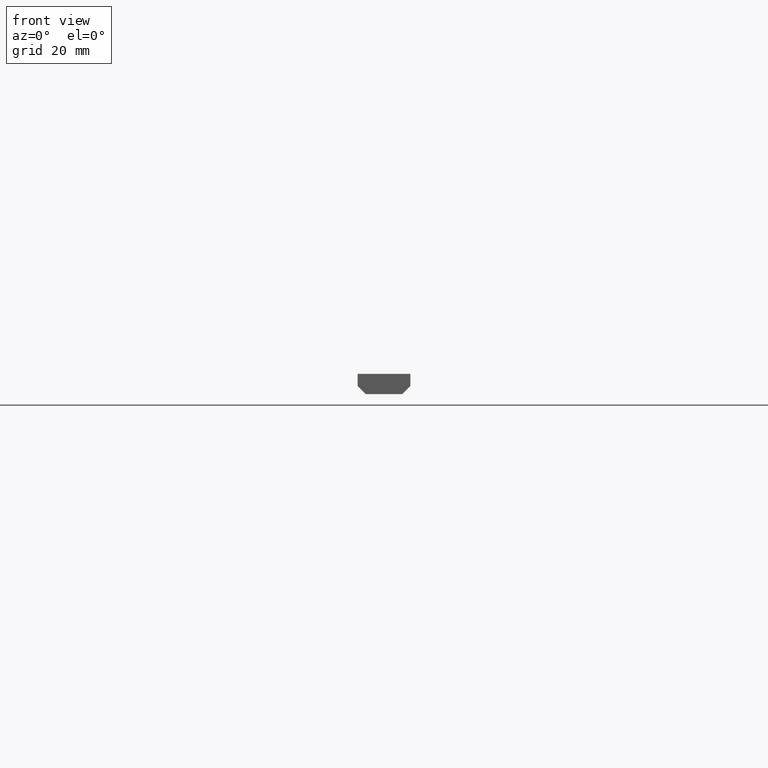
[diagram: clean part render]
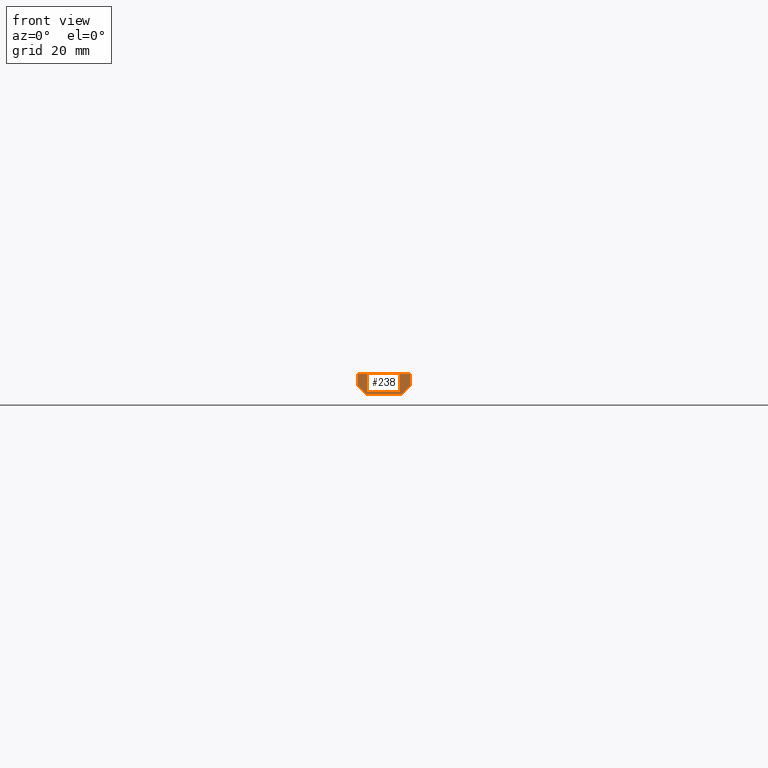
[diagram: same view with one face highlighted and labeled with its STEP entity id]
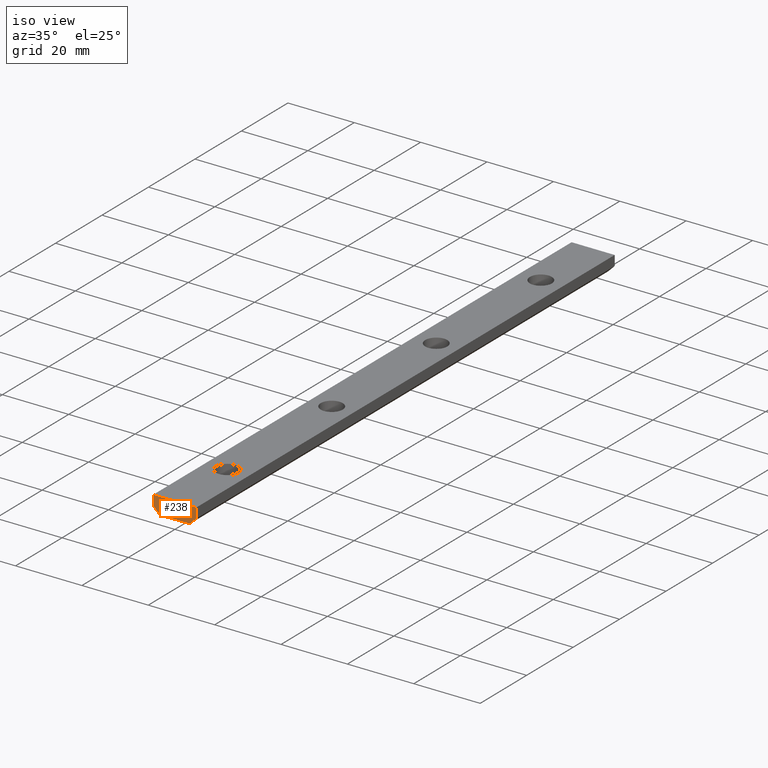
[diagram: same view with one face highlighted and labeled with its STEP entity id]
A machine part, front view. The second image highlights one B-rep face of the part: STEP entity #238.
A second angle (iso view) of the same face is appended — the face is thin or edge-on in the first view.
In plain terms, the highlighted planar face has unit normal (0, 1, 0).
Its self-contained STEP definition (entity closure, byte-faithful):
#47=FACE_OUTER_BOUND('',#67,.T.);
#67=EDGE_LOOP('',(#193,#194,#195,#196,#197,#198));
#77=LINE('',#330,#95);
#82=LINE('',#340,#100);
#89=LINE('',#354,#107);
#91=LINE('',#357,#109);
#92=LINE('',#368,#110);
#94=LINE('',#379,#112);
#95=VECTOR('',#270,3.);
#100=VECTOR('',#277,2.82842712474619);
#107=VECTOR('',#288,3.);
#109=VECTOR('',#292,13.);
#110=VECTOR('',#303,9.);
#112=VECTOR('',#315,2.82842712474619);
#113=VERTEX_POINT('',#328);
#114=VERTEX_POINT('',#329);
#118=VERTEX_POINT('',#339);
#122=VERTEX_POINT('',#351);
#123=VERTEX_POINT('',#353);
#128=VERTEX_POINT('',#367);
#133=EDGE_CURVE('',#113,#114,#77,.T.);
#138=EDGE_CURVE('',#118,#114,#82,.F.);
#145=EDGE_CURVE('',#122,#123,#89,.T.);
#147=EDGE_CURVE('',#123,#113,#91,.T.);
#152=EDGE_CURVE('',#118,#128,#92,.T.);
#158=EDGE_CURVE('',#122,#128,#94,.F.);
#193=ORIENTED_EDGE('',*,*,#145,.F.);
#194=ORIENTED_EDGE('',*,*,#158,.T.);
#195=ORIENTED_EDGE('',*,*,#152,.F.);
#196=ORIENTED_EDGE('',*,*,#138,.T.);
#197=ORIENTED_EDGE('',*,*,#133,.F.);
#198=ORIENTED_EDGE('',*,*,#147,.F.);
#217=PLANE('',#260);
#238=ADVANCED_FACE('',(#47),#217,.F.);
#260=AXIS2_PLACEMENT_3D('',#378,#313,#314);
#270=DIRECTION('',(1.7347234759768E-16,0.,-1.));
#277=DIRECTION('',(-0.707106781186548,0.,-0.707106781186548));
#288=DIRECTION('',(-1.7347234759768E-16,0.,1.));
#292=DIRECTION('',(1.,0.,1.33440267382831E-16));
#303=DIRECTION('',(-1.,0.,-1.33440267382831E-16));
#313=DIRECTION('center_axis',(0.,1.,0.));
#314=DIRECTION('ref_axis',(0.,0.,1.));
#315=DIRECTION('',(-0.707106781186548,0.,0.707106781186547));
#328=CARTESIAN_POINT('',(6.5,0.,2.5));
#329=CARTESIAN_POINT('',(6.5,0.,-0.5));
#330=CARTESIAN_POINT('',(6.5,0.,2.5));
#339=CARTESIAN_POINT('',(4.5,0.,-2.5));
#340=CARTESIAN_POINT('',(4.5,0.,-2.5));
#351=CARTESIAN_POINT('',(-6.5,0.,-0.5));
#353=CARTESIAN_POINT('',(-6.5,0.,2.5));
#354=CARTESIAN_POINT('',(-6.5,0.,-2.5));
#357=CARTESIAN_POINT('',(-6.5,0.,2.5));
#367=CARTESIAN_POINT('',(-4.5,0.,-2.5));
#368=CARTESIAN_POINT('',(6.5,0.,-2.5));
#378=CARTESIAN_POINT('Origin',(0.,0.,0.));
#379=CARTESIAN_POINT('',(-6.5,0.,-0.5));